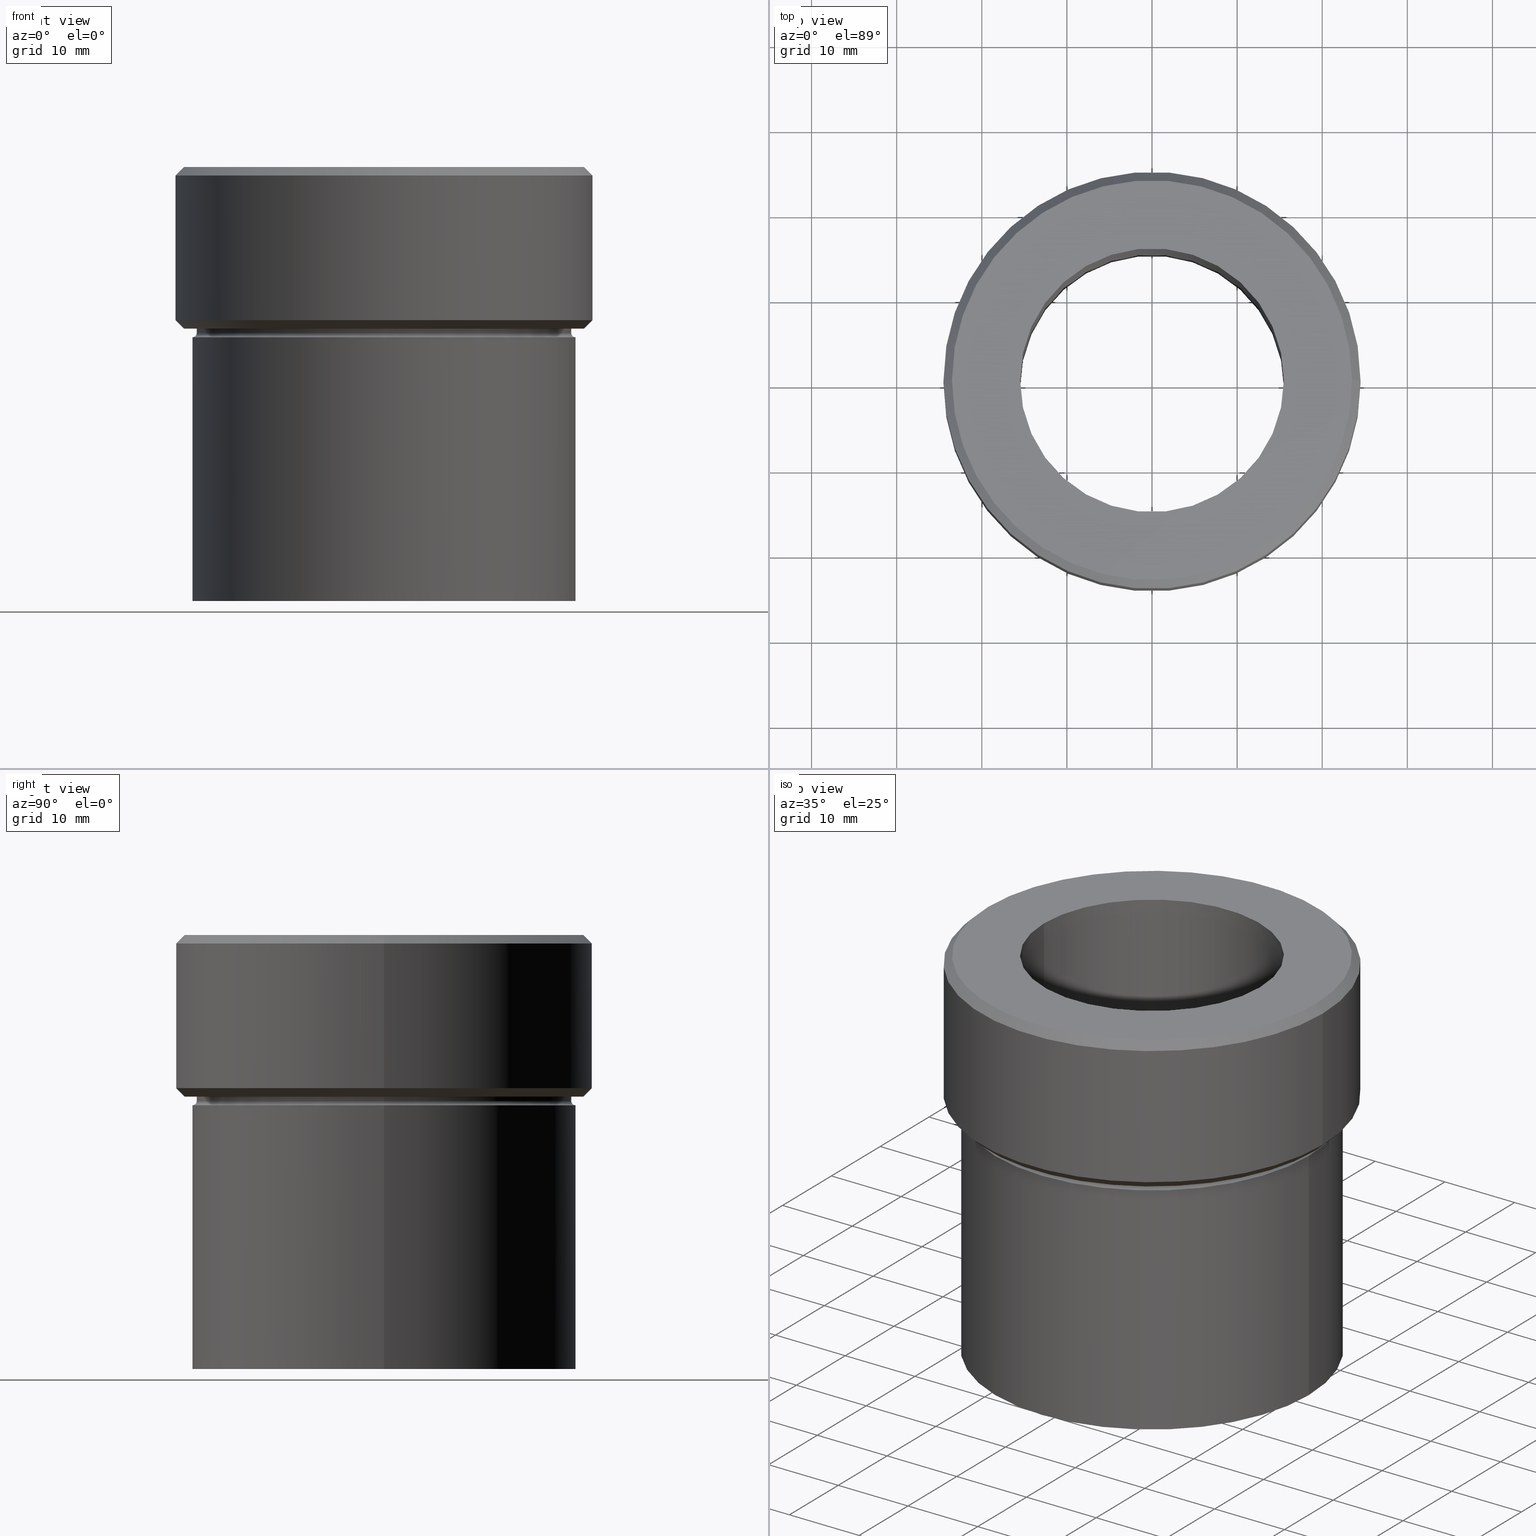
[diagram: canonical four-view strip — front | top / right | iso, engineering-drawing reading convention]
A machine part, canonical four-view strip (front | top / right | iso — engineering-drawing reading convention). The complete STEP part file that produces these views, byte-faithful:
ISO-10303-21;
HEADER;
FILE_DESCRIPTION (( 'STEP AP203' ),
    '1' );
FILE_NAME ('6616.STEP',
    '2024-01-08T12:24:46',
    ( '' ),
    ( '' ),
    'SwSTEP 2.0',
    'SolidWorks 2019',
    '' );
FILE_SCHEMA (( 'CONFIG_CONTROL_DESIGN' ));
ENDSEC;

DATA;
#1 = ORIENTED_EDGE ( 'NONE', *, *, #213, .T. ) ;
#2 = CC_DESIGN_PERSON_AND_ORGANIZATION_ASSIGNMENT ( #64, #234, ( #421 ) ) ;
#3 = DIRECTION ( 'NONE',  ( 1.000000000000000000, 0.000000000000000000, 0.000000000000000000 ) ) ;
#4 = DIRECTION ( 'NONE',  ( 0.000000000000000000, 0.000000000000000000, -1.000000000000000000 ) ) ;
#5 = CARTESIAN_POINT ( 'NONE',  ( 0.000000000000000000, 0.000000000000000000, 0.000000000000000000 ) ) ;
#6 = EDGE_CURVE ( 'NONE', #525, #436, #317, .T. ) ;
#7 = MANIFOLD_SOLID_BREP ( 'Odebrat vysunut�m1', #109 ) ;
#8 = ORIENTED_EDGE ( 'NONE', *, *, #213, .F. ) ;
#9 = AXIS2_PLACEMENT_3D ( 'NONE', #208, #228, #386 ) ;
#10 = PRODUCT_DEFINITION_SHAPE ( 'NONE', 'NONE',  #283 ) ;
#11 = DIRECTION ( 'NONE',  ( 1.000000000000000000, 0.000000000000000000, 0.000000000000000000 ) ) ;
#12 = PERSON_AND_ORGANIZATION_ROLE ( 'creator' ) ;
#13 = ORGANIZATION ( 'NEUR�EN�', 'NEUR�EN�', '' ) ;
#14 = LINE ( 'NONE', #469, #492 ) ;
#15 = DIRECTION ( 'NONE',  ( -0.000000000000000000, -0.000000000000000000, 1.000000000000000000 ) ) ;
#16 = PERSON_AND_ORGANIZATION ( #454, #13 ) ;
#17 = ADVANCED_FACE ( 'NONE', ( #281 ), #195, .T. ) ;
#18 = CIRCLE ( 'NONE', #161, 22.50000000000000355 ) ;
#19 = CARTESIAN_POINT ( 'NONE',  ( 0.000000000000000000, 0.000000000000000000, 0.000000000000000000 ) ) ;
#20 = VERTEX_POINT ( 'NONE', #243 ) ;
#21 = APPROVAL_PERSON_ORGANIZATION ( #511, #371, #60 ) ;
#22 = CARTESIAN_POINT ( 'NONE',  ( 0.000000000000000000, 0.000000000000000000, -19.99999999999999645 ) ) ;
#23 = ORIENTED_EDGE ( 'NONE', *, *, #66, .F. ) ;
#24 = CARTESIAN_POINT ( 'NONE',  ( 22.00000000000000000, 0.000000000000000000, -18.99999999999999645 ) ) ;
#25 = SECURITY_CLASSIFICATION_LEVEL ( 'unclassified' ) ;
#26 = ADVANCED_FACE ( 'NONE', ( #70 ), #259, .T. ) ;
#27 = VERTEX_POINT ( 'NONE', #438 ) ;
#28 = CARTESIAN_POINT ( 'NONE',  ( 0.000000000000000000, 0.000000000000000000, -19.49999999999999645 ) ) ;
#29 = VERTEX_POINT ( 'NONE', #361 ) ;
#30 = CC_DESIGN_PERSON_AND_ORGANIZATION_ASSIGNMENT ( #385, #184, ( #126 ) ) ;
#31 = AXIS2_PLACEMENT_3D ( 'NONE', #28, #358, #242 ) ;
#32 = CARTESIAN_POINT ( 'NONE',  ( 0.000000000000000000, 22.50000000000000355, -51.00000000000000000 ) ) ;
#33 = DIRECTION ( 'NONE',  ( -0.000000000000000000, -0.000000000000000000, 1.000000000000000000 ) ) ;
#34 = DIRECTION ( 'NONE',  ( 1.224646799147353207E-16, 1.000000000000000000, 0.000000000000000000 ) ) ;
#35 = EDGE_CURVE ( 'NONE', #287, #374, #364, .T. ) ;
#36 = APPLICATION_CONTEXT ( 'configuration controlled 3d designs of mechanical parts and assemblies' ) ;
#37 = EDGE_LOOP ( 'NONE', ( #284, #512, #84, #235 ) ) ;
#38 = CC_DESIGN_APPROVAL ( #82, ( #421 ) ) ;
#39 = DIRECTION ( 'NONE',  ( -1.000000000000000000, 0.000000000000000000, 0.000000000000000000 ) ) ;
#40 = CARTESIAN_POINT ( 'NONE',  ( 0.000000000000000000, 0.000000000000000000, -51.00000000000000000 ) ) ;
#41 = FACE_OUTER_BOUND ( 'NONE', #302, .T. ) ;
#42 = EDGE_CURVE ( 'NONE', #118, #193, #85, .T. ) ;
#43 = DIRECTION ( 'NONE',  ( -0.000000000000000000, -0.000000000000000000, 1.000000000000000000 ) ) ;
#44 = CARTESIAN_POINT ( 'NONE',  ( -22.00000000000000000, 2.694222958124176809E-15, -19.49999999999999645 ) ) ;
#45 = AXIS2_PLACEMENT_3D ( 'NONE', #346, #219, #224 ) ;
#46 = ORIENTED_EDGE ( 'NONE', *, *, #323, .T. ) ;
#47 = CARTESIAN_POINT ( 'NONE',  ( 0.000000000000000000, 0.000000000000000000, -19.49999999999999645 ) ) ;
#48 = ORIENTED_EDGE ( 'NONE', *, *, #313, .F. ) ;
#49 = CYLINDRICAL_SURFACE ( 'NONE', #429, 15.50000000000000000 ) ;
#50 = DIRECTION ( 'NONE',  ( 0.000000000000000000, 0.000000000000000000, -1.000000000000000000 ) ) ;
#51 = DIRECTION ( 'NONE',  ( 1.000000000000000000, 0.000000000000000000, 0.000000000000000000 ) ) ;
#52 = APPLICATION_PROTOCOL_DEFINITION ( 'international standard', 'config_control_design', 1994, #150 ) ;
#53 = AXIS2_PLACEMENT_3D ( 'NONE', #390, #306, #91 ) ;
#54 = DIRECTION ( 'NONE',  ( -0.000000000000000000, -0.000000000000000000, 1.000000000000000000 ) ) ;
#55 = CIRCLE ( 'NONE', #31, 22.00000000000000000 ) ;
#56 = CARTESIAN_POINT ( 'NONE',  ( 0.000000000000000000, 0.000000000000000000, -19.49999999999999645 ) ) ;
#57 = CALENDAR_DATE ( 2024, 8, 1 ) ;
#58 = EDGE_CURVE ( 'NONE', #158, #457, #246, .T. ) ;
#59 = FACE_OUTER_BOUND ( 'NONE', #263, .T. ) ;
#60 = APPROVAL_ROLE ( '' ) ;
#61 = ORIENTED_EDGE ( 'NONE', *, *, #345, .T. ) ;
#62 = AXIS2_PLACEMENT_3D ( 'NONE', #496, #87, #372 ) ;
#63 = DIRECTION ( 'NONE',  ( 1.000000000000000000, 0.000000000000000000, 0.000000000000000000 ) ) ;
#64 = PERSON_AND_ORGANIZATION ( #454, #13 ) ;
#65 = ORIENTED_EDGE ( 'NONE', *, *, #345, .F. ) ;
#66 = EDGE_CURVE ( 'NONE', #27, #441, #527, .T. ) ;
#67 = CARTESIAN_POINT ( 'NONE',  ( -23.50000000000000711, 0.000000000000000000, 0.000000000000000000 ) ) ;
#68 = EDGE_LOOP ( 'NONE', ( #310, #448, #8, #499 ) ) ;
#69 = CYLINDRICAL_SURFACE ( 'NONE', #86, 22.00000000000000000 ) ;
#70 = FACE_OUTER_BOUND ( 'NONE', #276, .T. ) ;
#71 = CARTESIAN_POINT ( 'NONE',  ( 0.000000000000000000, 0.000000000000000000, 0.000000000000000000 ) ) ;
#72 = DIRECTION ( 'NONE',  ( 0.000000000000000000, 0.000000000000000000, -1.000000000000000000 ) ) ;
#73 = ADVANCED_FACE ( 'NONE', ( #526 ), #488, .F. ) ;
#74 = ORIENTED_EDGE ( 'NONE', *, *, #220, .F. ) ;
#75 = CARTESIAN_POINT ( 'NONE',  ( -24.50000000000000000, 3.000384657911015469E-15, 0.000000000000000000 ) ) ;
#76 = CARTESIAN_POINT ( 'NONE',  ( 24.50000000000000000, 0.000000000000000000, -17.99999999999998224 ) ) ;
#77 = AXIS2_PLACEMENT_3D ( 'NONE', #227, #384, #141 ) ;
#78 = DIRECTION ( 'NONE',  ( -0.000000000000000000, -0.000000000000000000, 1.000000000000000000 ) ) ;
#79 = DIRECTION ( 'NONE',  ( 1.000000000000000000, 0.000000000000000000, 0.000000000000000000 ) ) ;
#80 = APPROVAL ( #112, 'NEUR�EN�' ) ;
#81 = DIRECTION ( 'NONE',  ( -1.000000000000000000, 0.000000000000000000, 0.000000000000000000 ) ) ;
#82 = APPROVAL ( #507, 'NEUR�EN�' ) ;
#83 = AXIS2_PLACEMENT_3D ( 'NONE', #167, #493, #377 ) ;
#84 = ORIENTED_EDGE ( 'NONE', *, *, #510, .F. ) ;
#85 = CIRCLE ( 'NONE', #293, 0.5000000000000004441 ) ;
#86 = AXIS2_PLACEMENT_3D ( 'NONE', #318, #315, #480 ) ;
#87 = DIRECTION ( 'NONE',  ( 0.000000000000000000, 0.000000000000000000, -1.000000000000000000 ) ) ;
#88 = CARTESIAN_POINT ( 'NONE',  ( 0.000000000000000000, 0.000000000000000000, -18.99999999999999645 ) ) ;
#89 = ORIENTED_EDGE ( 'NONE', *, *, #135, .F. ) ;
#90 = ADVANCED_FACE ( 'NONE', ( #254 ), #49, .F. ) ;
#91 = DIRECTION ( 'NONE',  ( 1.000000000000000000, 0.000000000000000000, 0.000000000000000000 ) ) ;
#92 = DATE_TIME_ROLE ( 'creation_date' ) ;
#93 = FACE_OUTER_BOUND ( 'NONE', #68, .T. ) ;
#94 = FACE_BOUND ( 'NONE', #520, .T. ) ;
#95 = EDGE_CURVE ( 'NONE', #523, #427, #330, .T. ) ;
#96 = DIRECTION ( 'NONE',  ( 0.000000000000000000, 0.000000000000000000, 1.000000000000000000 ) ) ;
#97 = APPROVAL_PERSON_ORGANIZATION ( #477, #80, #322 ) ;
#98 = DIRECTION ( 'NONE',  ( 0.000000000000000000, -0.000000000000000000, 1.000000000000000000 ) ) ;
#99 = COORDINATED_UNIVERSAL_TIME_OFFSET ( 1, 0, .AHEAD. ) ;
#100 = ORIENTED_EDGE ( 'NONE', *, *, #220, .T. ) ;
#101 = CC_DESIGN_PERSON_AND_ORGANIZATION_ASSIGNMENT ( #229, #12, ( #283 ) ) ;
#102 = CARTESIAN_POINT ( 'NONE',  ( 0.000000000000000000, 0.000000000000000000, -51.00000000000000000 ) ) ;
#103 = DATE_AND_TIME ( #387, #325 ) ;
#104 = ORIENTED_EDGE ( 'NONE', *, *, #197, .T. ) ;
#105 = EDGE_CURVE ( 'NONE', #427, #154, #485, .T. ) ;
#106 = CONICAL_SURFACE ( 'NONE', #62, 23.50000000000000711, 0.7853981633974482790 ) ;
#107 = COORDINATED_UNIVERSAL_TIME_OFFSET ( 1, 0, .AHEAD. ) ;
#108 = ORIENTED_EDGE ( 'NONE', *, *, #435, .F. ) ;
#109 = CLOSED_SHELL ( 'NONE', ( #73, #182, #174, #479, #239, #442, #418, #273, #362, #159, #501, #17, #461, #255, #26, #231, #90 ) ) ;
#110 = CC_DESIGN_SECURITY_CLASSIFICATION ( #445, ( #421 ) ) ;
#111 = CARTESIAN_POINT ( 'NONE',  ( -15.50000000000000000, 1.898202538678397557E-15, -51.00000000000000000 ) ) ;
#112 = APPROVAL_STATUS ( 'not_yet_approved' ) ;
#113 = DIRECTION ( 'NONE',  ( -0.000000000000000000, -0.000000000000000000, 1.000000000000000000 ) ) ;
#114 = DIRECTION ( 'NONE',  ( -0.000000000000000000, -0.000000000000000000, 1.000000000000000000 ) ) ;
#115 = EDGE_LOOP ( 'NONE', ( #339, #414 ) ) ;
#116 = AXIS2_PLACEMENT_3D ( 'NONE', #506, #54, #63 ) ;
#117 = EDGE_CURVE ( 'NONE', #525, #374, #206, .T. ) ;
#118 = VERTEX_POINT ( 'NONE', #44 ) ;
#119 = VECTOR ( 'NONE', #406, 1000.000000000000000 ) ;
#120 = ORIENTED_EDGE ( 'NONE', *, *, #117, .T. ) ;
#121 = PERSON_AND_ORGANIZATION_ROLE ( 'design_supplier' ) ;
#122 = EDGE_LOOP ( 'NONE', ( #179, #48, #407, #166 ) ) ;
#123 = DIRECTION ( 'NONE',  ( 0.000000000000000000, 0.000000000000000000, -1.000000000000000000 ) ) ;
#124 = EDGE_CURVE ( 'NONE', #158, #391, #258, .T. ) ;
#125 = DIRECTION ( 'NONE',  ( -0.000000000000000000, -0.000000000000000000, 1.000000000000000000 ) ) ;
#126 = PRODUCT ( '6616', '6616', '', ( #350 ) ) ;
#127 = AXIS2_PLACEMENT_3D ( 'NONE', #181, #98, #509 ) ;
#128 = CIRCLE ( 'NONE', #524, 22.00000000000000000 ) ;
#129 = CARTESIAN_POINT ( 'NONE',  ( 23.50000000000000711, 2.939152317953648289E-15, 0.000000000000000000 ) ) ;
#130 = CARTESIAN_POINT ( 'NONE',  ( 0.000000000000000000, 0.000000000000000000, -0.9999999999999940048 ) ) ;
#131 = ORIENTED_EDGE ( 'NONE', *, *, #376, .F. ) ;
#132 = DIRECTION ( 'NONE',  ( 1.000000000000000000, 0.000000000000000000, 0.000000000000000000 ) ) ;
#133 = CARTESIAN_POINT ( 'NONE',  ( 0.000000000000000000, 0.000000000000000000, -17.99999999999998224 ) ) ;
#134 = DIRECTION ( 'NONE',  ( -0.000000000000000000, -0.000000000000000000, 1.000000000000000000 ) ) ;
#135 = EDGE_CURVE ( 'NONE', #398, #27, #143, .T. ) ;
#136 = VECTOR ( 'NONE', #78, 1000.000000000000000 ) ;
#137 = ORIENTED_EDGE ( 'NONE', *, *, #519, .F. ) ;
#138 = LOCAL_TIME ( 13, 24, 46.00000000000000000, #288 ) ;
#139 = LINE ( 'NONE', #308, #314 ) ;
#140 = APPROVAL_STATUS ( 'not_yet_approved' ) ;
#141 = DIRECTION ( 'NONE',  ( 1.000000000000000000, 0.000000000000000000, 0.000000000000000000 ) ) ;
#142 = DIRECTION ( 'NONE',  ( 1.000000000000000000, 0.000000000000000000, 0.000000000000000000 ) ) ;
#143 = CIRCLE ( 'NONE', #380, 24.50000000000000000 ) ;
#144 = DESIGN_CONTEXT ( 'detailed design', #36, 'design' ) ;
#145 = PRODUCT_RELATED_PRODUCT_CATEGORY ( 'detail', '', ( #126 ) ) ;
#146 = DIRECTION ( 'NONE',  ( -0.000000000000000000, -0.000000000000000000, 1.000000000000000000 ) ) ;
#147 = APPROVAL_ROLE ( '' ) ;
#148 = DIRECTION ( 'NONE',  ( -0.7071067811865451302, 8.659560562354904508E-17, 0.7071067811865500152 ) ) ;
#149 = ORIENTED_EDGE ( 'NONE', *, *, #117, .F. ) ;
#150 = APPLICATION_CONTEXT ( 'configuration controlled 3d designs of mechanical parts and assemblies' ) ;
#151 = CARTESIAN_POINT ( 'NONE',  ( 24.50000000000000000, 0.000000000000000000, -0.9999999999999940048 ) ) ;
#152 = ORIENTED_EDGE ( 'NONE', *, *, #329, .T. ) ;
#153 = AXIS2_PLACEMENT_3D ( 'NONE', #497, #123, #412 ) ;
#154 = VERTEX_POINT ( 'NONE', #453 ) ;
#155 = VECTOR ( 'NONE', #245, 1000.000000000000000 ) ;
#156 = AXIS2_PLACEMENT_3D ( 'NONE', #40, #4, #209 ) ;
#157 = DIRECTION ( 'NONE',  ( -0.000000000000000000, -0.000000000000000000, 1.000000000000000000 ) ) ;
#158 = VERTEX_POINT ( 'NONE', #129 ) ;
#159 = ADVANCED_FACE ( 'NONE', ( #328, #449 ), #214, .T. ) ;
#160 = CARTESIAN_POINT ( 'NONE',  ( 22.50000000000000000, 0.000000000000000000, 0.000000000000000000 ) ) ;
#161 = AXIS2_PLACEMENT_3D ( 'NONE', #102, #307, #464 ) ;
#162 = EDGE_LOOP ( 'NONE', ( #356, #431, #393, #440 ) ) ;
#163 = VECTOR ( 'NONE', #296, 1000.000000000000114 ) ;
#164 = AXIS2_PLACEMENT_3D ( 'NONE', #515, #114, #396 ) ;
#165 = EDGE_LOOP ( 'NONE', ( #299, #452, #286, #131 ) ) ;
#166 = ORIENTED_EDGE ( 'NONE', *, *, #207, .F. ) ;
#167 = CARTESIAN_POINT ( 'NONE',  ( 22.50000000000000000, 0.000000000000000000, -19.49999999999999645 ) ) ;
#168 = LINE ( 'NONE', #76, #403 ) ;
#169 = DIRECTION ( 'NONE',  ( -0.000000000000000000, -0.000000000000000000, 1.000000000000000000 ) ) ;
#170 = AXIS2_PLACEMENT_3D ( 'NONE', #444, #402, #39 ) ;
#171 = CC_DESIGN_APPROVAL ( #80, ( #445 ) ) ;
#172 = DIRECTION ( 'NONE',  ( 1.000000000000000000, 0.000000000000000000, 0.000000000000000000 ) ) ;
#173 = EDGE_LOOP ( 'NONE', ( #46, #272 ) ) ;
#174 = ADVANCED_FACE ( 'NONE', ( #41 ), #106, .T. ) ;
#175 = DIRECTION ( 'NONE',  ( -0.000000000000000000, -0.000000000000000000, 1.000000000000000000 ) ) ;
#176 = ORIENTED_EDGE ( 'NONE', *, *, #495, .T. ) ;
#177 = DIRECTION ( 'NONE',  ( 0.000000000000000000, 0.000000000000000000, -1.000000000000000000 ) ) ;
#178 = VECTOR ( 'NONE', #125, 1000.000000000000000 ) ;
#179 = ORIENTED_EDGE ( 'NONE', *, *, #279, .F. ) ;
#180 = CIRCLE ( 'NONE', #456, 22.00000000000000000 ) ;
#181 = CARTESIAN_POINT ( 'NONE',  ( 0.000000000000000000, 0.000000000000000000, 0.000000000000000000 ) ) ;
#182 = ADVANCED_FACE ( 'NONE', ( #490 ), #401, .F. ) ;
#183 = DIRECTION ( 'NONE',  ( -1.000000000000000000, 0.000000000000000000, 0.000000000000000000 ) ) ;
#184 = PERSON_AND_ORGANIZATION_ROLE ( 'design_owner' ) ;
#185 = LINE ( 'NONE', #271, #194 ) ;
#186 = CIRCLE ( 'NONE', #483, 23.50000000000000711 ) ;
#187 = FACE_OUTER_BOUND ( 'NONE', #173, .T. ) ;
#188 = AXIS2_PLACEMENT_3D ( 'NONE', #455, #413, #370 ) ;
#189 = ORIENTED_EDGE ( 'NONE', *, *, #105, .T. ) ;
#190 = EDGE_CURVE ( 'NONE', #118, #29, #443, .T. ) ;
#191 = ORIENTED_EDGE ( 'NONE', *, *, #207, .T. ) ;
#192 = DIRECTION ( 'NONE',  ( -0.000000000000000000, -0.000000000000000000, 1.000000000000000000 ) ) ;
#193 = VERTEX_POINT ( 'NONE', #257 ) ;
#194 = VECTOR ( 'NONE', #148, 1000.000000000000114 ) ;
#195 = CYLINDRICAL_SURFACE ( 'NONE', #204, 22.50000000000000000 ) ;
#196 = AXIS2_PLACEMENT_3D ( 'NONE', #277, #157, #311 ) ;
#197 = EDGE_CURVE ( 'NONE', #295, #351, #437, .T. ) ;
#198 = DIRECTION ( 'NONE',  ( 0.000000000000000000, 0.000000000000000000, -1.000000000000000000 ) ) ;
#199 = DIRECTION ( 'NONE',  ( -1.000000000000000000, 0.000000000000000000, 0.000000000000000000 ) ) ;
#200 = EDGE_CURVE ( 'NONE', #400, #154, #217, .T. ) ;
#201 = PERSON_AND_ORGANIZATION_ROLE ( 'classification_officer' ) ;
#202 = ORIENTED_EDGE ( 'NONE', *, *, #279, .T. ) ;
#203 = EDGE_LOOP ( 'NONE', ( #108, #65 ) ) ;
#204 = AXIS2_PLACEMENT_3D ( 'NONE', #71, #33, #433 ) ;
#205 = CIRCLE ( 'NONE', #164, 22.50000000000000355 ) ;
#206 = CIRCLE ( 'NONE', #83, 0.5000000000000004441 ) ;
#207 = EDGE_CURVE ( 'NONE', #27, #398, #530, .T. ) ;
#208 = CARTESIAN_POINT ( 'NONE',  ( 0.000000000000000000, 0.000000000000000000, -19.99999999999999645 ) ) ;
#209 = DIRECTION ( 'NONE',  ( -1.000000000000000000, 0.000000000000000000, 0.000000000000000000 ) ) ;
#210 = DIRECTION ( 'NONE',  ( -1.000000000000000000, 0.000000000000000000, -0.000000000000000000 ) ) ;
#211 = TOROIDAL_SURFACE ( 'NONE', #116, 22.50000000000000000, 0.5000000000000000000 ) ;
#212 = ORIENTED_EDGE ( 'NONE', *, *, #510, .T. ) ;
#213 = EDGE_CURVE ( 'NONE', #374, #193, #474, .T. ) ;
#214 = PLANE ( 'NONE',  #301 ) ;
#215 = DIRECTION ( 'NONE',  ( 0.7071067811865451302, 0.000000000000000000, 0.7071067811865500152 ) ) ;
#216 = EDGE_LOOP ( 'NONE', ( #278, #337, #120, #1 ) ) ;
#217 = LINE ( 'NONE', #248, #178 ) ;
#218 = ORIENTED_EDGE ( 'NONE', *, *, #200, .F. ) ;
#219 = DIRECTION ( 'NONE',  ( 0.000000000000000000, 0.000000000000000000, -1.000000000000000000 ) ) ;
#220 = EDGE_CURVE ( 'NONE', #391, #441, #139, .T. ) ;
#221 =( LENGTH_UNIT ( ) NAMED_UNIT ( * ) SI_UNIT ( .MILLI., .METRE. ) );
#222 = AXIS2_PLACEMENT_3D ( 'NONE', #19, #146, #232 ) ;
#223 =( GEOMETRIC_REPRESENTATION_CONTEXT ( 3 ) GLOBAL_UNCERTAINTY_ASSIGNED_CONTEXT ( ( #508 ) ) GLOBAL_UNIT_ASSIGNED_CONTEXT ( ( #221, #305, #468 ) ) REPRESENTATION_CONTEXT ( 'NONE', 'WORKASPACE' ) );
#224 = DIRECTION ( 'NONE',  ( -1.000000000000000000, 0.000000000000000000, 0.000000000000000000 ) ) ;
#225 = APPROVAL_DATE_TIME ( #423, #371 ) ;
#226 = EDGE_CURVE ( 'NONE', #193, #374, #419, .T. ) ;
#227 = CARTESIAN_POINT ( 'NONE',  ( 0.000000000000000000, 0.000000000000000000, -18.99999999999999645 ) ) ;
#228 = DIRECTION ( 'NONE',  ( -0.000000000000000000, -0.000000000000000000, 1.000000000000000000 ) ) ;
#229 = PERSON_AND_ORGANIZATION ( #454, #13 ) ;
#230 = ORIENTED_EDGE ( 'NONE', *, *, #197, .F. ) ;
#231 = ADVANCED_FACE ( 'NONE', ( #349 ), #211, .F. ) ;
#232 = DIRECTION ( 'NONE',  ( 1.000000000000000000, 0.000000000000000000, 0.000000000000000000 ) ) ;
#233 = VECTOR ( 'NONE', #291, 1000.000000000000000 ) ;
#234 = PERSON_AND_ORGANIZATION_ROLE ( 'creator' ) ;
#235 = ORIENTED_EDGE ( 'NONE', *, *, #6, .F. ) ;
#236 = ORIENTED_EDGE ( 'NONE', *, *, #58, .T. ) ;
#237 = CYLINDRICAL_SURFACE ( 'NONE', #196, 24.50000000000000000 ) ;
#238 = SHAPE_DEFINITION_REPRESENTATION ( #10, #297 ) ;
#239 = ADVANCED_FACE ( 'NONE', ( #93 ), #267, .T. ) ;
#240 = EDGE_LOOP ( 'NONE', ( #481, #528, #353, #149 ) ) ;
#241 = AXIS2_PLACEMENT_3D ( 'NONE', #424, #458, #183 ) ;
#242 = DIRECTION ( 'NONE',  ( 1.000000000000000000, 0.000000000000000000, 0.000000000000000000 ) ) ;
#243 = CARTESIAN_POINT ( 'NONE',  ( -22.50000000000000355, 2.755455298081545567E-15, -51.00000000000000000 ) ) ;
#244 = CONICAL_SURFACE ( 'NONE', #250, 24.50000000000000000, 0.7853981633974447263 ) ;
#245 = DIRECTION ( 'NONE',  ( -0.000000000000000000, -0.000000000000000000, 1.000000000000000000 ) ) ;
#246 = LINE ( 'NONE', #300, #163 ) ;
#247 = AXIS2_PLACEMENT_3D ( 'NONE', #47, #175, #132 ) ;
#248 = CARTESIAN_POINT ( 'NONE',  ( -15.50000000000000000, 1.898202538678397557E-15, -65.00000000000000000 ) ) ;
#249 = DIRECTION ( 'NONE',  ( -0.000000000000000000, -0.000000000000000000, 1.000000000000000000 ) ) ;
#250 = AXIS2_PLACEMENT_3D ( 'NONE', #133, #249, #331 ) ;
#251 = EDGE_LOOP ( 'NONE', ( #517, #104 ) ) ;
#252 = DIRECTION ( 'NONE',  ( -0.000000000000000000, -0.000000000000000000, 1.000000000000000000 ) ) ;
#253 = LINE ( 'NONE', #405, #484 ) ;
#254 = FACE_OUTER_BOUND ( 'NONE', #522, .T. ) ;
#255 = ADVANCED_FACE ( 'NONE', ( #383 ), #518, .T. ) ;
#256 = ORIENTED_EDGE ( 'NONE', *, *, #323, .F. ) ;
#257 = CARTESIAN_POINT ( 'NONE',  ( -22.50000000000000000, 2.755455298081544778E-15, -19.99999999999999645 ) ) ;
#258 = CIRCLE ( 'NONE', #389, 23.50000000000000711 ) ;
#259 = CONICAL_SURFACE ( 'NONE', #321, 23.50000000000000711, 0.7853981633974482790 ) ;
#260 = ORIENTED_EDGE ( 'NONE', *, *, #226, .F. ) ;
#261 = LOCAL_TIME ( 13, 24, 46.00000000000000000, #459 ) ;
#262 = CARTESIAN_POINT ( 'NONE',  ( 0.000000000000000000, 0.000000000000000000, -65.00000000000000000 ) ) ;
#263 = EDGE_LOOP ( 'NONE', ( #23, #191, #482, #319 ) ) ;
#264 = EDGE_CURVE ( 'NONE', #457, #441, #357, .T. ) ;
#265 = CYLINDRICAL_SURFACE ( 'NONE', #466, 24.50000000000000000 ) ;
#266 = PERSON_AND_ORGANIZATION ( #454, #13 ) ;
#267 = CYLINDRICAL_SURFACE ( 'NONE', #222, 22.50000000000000000 ) ;
#268 = CIRCLE ( 'NONE', #45, 23.49999999999999289 ) ;
#269 = DIRECTION ( 'NONE',  ( -0.000000000000000000, -0.000000000000000000, 1.000000000000000000 ) ) ;
#270 = DIRECTION ( 'NONE',  ( 1.000000000000000000, 0.000000000000000000, 0.000000000000000000 ) ) ;
#271 = CARTESIAN_POINT ( 'NONE',  ( -24.50000000000000000, 3.000384657911015469E-15, -17.99999999999998224 ) ) ;
#272 = ORIENTED_EDGE ( 'NONE', *, *, #124, .T. ) ;
#273 = ADVANCED_FACE ( 'NONE', ( #94, #187 ), #304, .T. ) ;
#274 = CARTESIAN_POINT ( 'NONE',  ( 23.49999999999999289, 0.000000000000000000, -18.99999999999999645 ) ) ;
#275 = APPROVAL_DATE_TIME ( #103, #82 ) ;
#276 = EDGE_LOOP ( 'NONE', ( #388, #256, #100, #327 ) ) ;
#277 = CARTESIAN_POINT ( 'NONE',  ( 0.000000000000000000, 0.000000000000000000, 0.000000000000000000 ) ) ;
#278 = ORIENTED_EDGE ( 'NONE', *, *, #42, .F. ) ;
#279 = EDGE_CURVE ( 'NONE', #295, #27, #185, .T. ) ;
#280 = APPROVAL_DATE_TIME ( #430, #80 ) ;
#281 = FACE_OUTER_BOUND ( 'NONE', #473, .T. ) ;
#282 = PLANE ( 'NONE',  #500 ) ;
#283 = PRODUCT_DEFINITION ( 'NEZN�M�', '', #421, #144 ) ;
#284 = ORIENTED_EDGE ( 'NONE', *, *, #367, .T. ) ;
#285 = CALENDAR_DATE ( 2024, 8, 1 ) ;
#286 = ORIENTED_EDGE ( 'NONE', *, *, #6, .T. ) ;
#287 = VERTEX_POINT ( 'NONE', #462 ) ;
#288 = COORDINATED_UNIVERSAL_TIME_OFFSET ( 1, 0, .AHEAD. ) ;
#289 = DIRECTION ( 'NONE',  ( -1.000000000000000000, 1.224646799147349509E-16, 0.000000000000000000 ) ) ;
#290 = EDGE_CURVE ( 'NONE', #398, #457, #14, .T. ) ;
#291 = DIRECTION ( 'NONE',  ( -0.000000000000000000, -0.000000000000000000, 1.000000000000000000 ) ) ;
#292 = CARTESIAN_POINT ( 'NONE',  ( 0.000000000000000000, 0.000000000000000000, 0.000000000000000000 ) ) ;
#293 = AXIS2_PLACEMENT_3D ( 'NONE', #399, #34, #289 ) ;
#294 = DIRECTION ( 'NONE',  ( -0.000000000000000000, -0.000000000000000000, 1.000000000000000000 ) ) ;
#295 = VERTEX_POINT ( 'NONE', #343 ) ;
#296 = DIRECTION ( 'NONE',  ( 0.7071067811865474617, 8.659560562354932858E-17, -0.7071067811865474617 ) ) ;
#297 = ADVANCED_BREP_SHAPE_REPRESENTATION ( '6616', ( #7, #494 ), #223 ) ;
#298 = DIRECTION ( 'NONE',  ( -0.000000000000000000, -0.000000000000000000, 1.000000000000000000 ) ) ;
#299 = ORIENTED_EDGE ( 'NONE', *, *, #190, .F. ) ;
#300 = CARTESIAN_POINT ( 'NONE',  ( 23.50000000000000711, 2.877919977996281109E-15, 0.000000000000000000 ) ) ;
#301 = AXIS2_PLACEMENT_3D ( 'NONE', #336, #177, #210 ) ;
#302 = EDGE_LOOP ( 'NONE', ( #514, #236, #137, #74 ) ) ;
#303 = CIRCLE ( 'NONE', #365, 24.50000000000000000 ) ;
#304 = PLANE ( 'NONE',  #127 ) ;
#305 =( NAMED_UNIT ( * ) PLANE_ANGLE_UNIT ( ) SI_UNIT ( $, .RADIAN. ) );
#306 = DIRECTION ( 'NONE',  ( -0.000000000000000000, -0.000000000000000000, 1.000000000000000000 ) ) ;
#307 = DIRECTION ( 'NONE',  ( -0.000000000000000000, -0.000000000000000000, 1.000000000000000000 ) ) ;
#308 = CARTESIAN_POINT ( 'NONE',  ( -23.50000000000000711, 0.000000000000000000, 0.000000000000000000 ) ) ;
#309 = DIRECTION ( 'NONE',  ( 1.000000000000000000, 0.000000000000000000, 0.000000000000000000 ) ) ;
#310 = ORIENTED_EDGE ( 'NONE', *, *, #435, .T. ) ;
#311 = DIRECTION ( 'NONE',  ( 1.000000000000000000, 0.000000000000000000, 0.000000000000000000 ) ) ;
#312 = ORIENTED_EDGE ( 'NONE', *, *, #95, .T. ) ;
#313 = EDGE_CURVE ( 'NONE', #351, #295, #268, .T. ) ;
#314 = VECTOR ( 'NONE', #426, 1000.000000000000114 ) ;
#315 = DIRECTION ( 'NONE',  ( -0.000000000000000000, -0.000000000000000000, 1.000000000000000000 ) ) ;
#316 = LOCAL_TIME ( 13, 24, 46.00000000000000000, #344 ) ;
#317 = LINE ( 'NONE', #324, #420 ) ;
#318 = CARTESIAN_POINT ( 'NONE',  ( 0.000000000000000000, 0.000000000000000000, 0.000000000000000000 ) ) ;
#319 = ORIENTED_EDGE ( 'NONE', *, *, #264, .T. ) ;
#320 = ORIENTED_EDGE ( 'NONE', *, *, #105, .F. ) ;
#321 = AXIS2_PLACEMENT_3D ( 'NONE', #395, #72, #199 ) ;
#322 = APPROVAL_ROLE ( '' ) ;
#323 = EDGE_CURVE ( 'NONE', #391, #158, #186, .T. ) ;
#324 = CARTESIAN_POINT ( 'NONE',  ( 22.00000000000000000, 0.000000000000000000, 0.000000000000000000 ) ) ;
#325 = LOCAL_TIME ( 13, 24, 46.00000000000000000, #99 ) ;
#326 = AXIS2_PLACEMENT_3D ( 'NONE', #5, #294, #172 ) ;
#327 = ORIENTED_EDGE ( 'NONE', *, *, #264, .F. ) ;
#328 = FACE_OUTER_BOUND ( 'NONE', #251, .T. ) ;
#329 = EDGE_CURVE ( 'NONE', #523, #400, #465, .T. ) ;
#330 = LINE ( 'NONE', #375, #119 ) ;
#331 = DIRECTION ( 'NONE',  ( 1.000000000000000000, 0.000000000000000000, 0.000000000000000000 ) ) ;
#332 = APPROVAL_PERSON_ORGANIZATION ( #16, #82, #147 ) ;
#333 = ORIENTED_EDGE ( 'NONE', *, *, #529, .F. ) ;
#334 = CC_DESIGN_DATE_AND_TIME_ASSIGNMENT ( #486, #521, ( #445 ) ) ;
#335 = CC_DESIGN_PERSON_AND_ORGANIZATION_ASSIGNMENT ( #355, #201, ( #445 ) ) ;
#336 = CARTESIAN_POINT ( 'NONE',  ( 0.000000000000000000, 24.50000000000000000, -18.99999999999999645 ) ) ;
#337 = ORIENTED_EDGE ( 'NONE', *, *, #367, .F. ) ;
#338 = DIRECTION ( 'NONE',  ( 0.000000000000000000, 0.000000000000000000, -1.000000000000000000 ) ) ;
#339 = ORIENTED_EDGE ( 'NONE', *, *, #329, .F. ) ;
#340 = LOCAL_TIME ( 13, 24, 46.00000000000000000, #107 ) ;
#341 = DIRECTION ( 'NONE',  ( -0.000000000000000000, -0.000000000000000000, 1.000000000000000000 ) ) ;
#342 = APPLICATION_PROTOCOL_DEFINITION ( 'international standard', 'config_control_design', 1994, #36 ) ;
#343 = CARTESIAN_POINT ( 'NONE',  ( -23.49999999999999289, 2.939152317953647500E-15, -18.99999999999999645 ) ) ;
#344 = COORDINATED_UNIVERSAL_TIME_OFFSET ( 1, 0, .AHEAD. ) ;
#345 = EDGE_CURVE ( 'NONE', #20, #287, #18, .T. ) ;
#346 = CARTESIAN_POINT ( 'NONE',  ( 0.000000000000000000, 0.000000000000000000, -18.99999999999999645 ) ) ;
#347 = AXIS2_PLACEMENT_3D ( 'NONE', #22, #15, #309 ) ;
#348 = AXIS2_PLACEMENT_3D ( 'NONE', #369, #169, #3 ) ;
#349 = FACE_OUTER_BOUND ( 'NONE', #216, .T. ) ;
#350 = MECHANICAL_CONTEXT ( 'NONE', #150, 'mechanical' ) ;
#351 = VERTEX_POINT ( 'NONE', #274 ) ;
#352 = FACE_BOUND ( 'NONE', #115, .T. ) ;
#353 = ORIENTED_EDGE ( 'NONE', *, *, #226, .T. ) ;
#354 = CARTESIAN_POINT ( 'NONE',  ( 0.000000000000000000, 0.000000000000000000, 0.000000000000000000 ) ) ;
#355 = PERSON_AND_ORGANIZATION ( #454, #13 ) ;
#356 = ORIENTED_EDGE ( 'NONE', *, *, #135, .T. ) ;
#357 = CIRCLE ( 'NONE', #505, 24.50000000000000000 ) ;
#358 = DIRECTION ( 'NONE',  ( -0.000000000000000000, -0.000000000000000000, 1.000000000000000000 ) ) ;
#359 = ORIENTED_EDGE ( 'NONE', *, *, #472, .F. ) ;
#360 = CARTESIAN_POINT ( 'NONE',  ( -24.50000000000000000, 3.000384657911015469E-15, -0.9999999999999940048 ) ) ;
#361 = CARTESIAN_POINT ( 'NONE',  ( -22.00000000000000000, 2.694222958124176809E-15, -18.99999999999999645 ) ) ;
#362 = ADVANCED_FACE ( 'NONE', ( #59 ), #265, .T. ) ;
#363 = EDGE_LOOP ( 'NONE', ( #212, #502 ) ) ;
#364 = LINE ( 'NONE', #160, #155 ) ;
#365 = AXIS2_PLACEMENT_3D ( 'NONE', #130, #50, #79 ) ;
#366 = DIRECTION ( 'NONE',  ( -0.000000000000000000, -0.000000000000000000, 1.000000000000000000 ) ) ;
#367 = EDGE_CURVE ( 'NONE', #525, #118, #180, .T. ) ;
#368 = CARTESIAN_POINT ( 'NONE',  ( 15.50000000000000000, 0.000000000000000000, -51.00000000000000000 ) ) ;
#369 = CARTESIAN_POINT ( 'NONE',  ( 0.000000000000000000, 0.000000000000000000, -65.00000000000000000 ) ) ;
#370 = DIRECTION ( 'NONE',  ( 1.000000000000000000, 0.000000000000000000, 0.000000000000000000 ) ) ;
#371 = APPROVAL ( #140, 'NEUR�EN�' ) ;
#372 = DIRECTION ( 'NONE',  ( -1.000000000000000000, 0.000000000000000000, 0.000000000000000000 ) ) ;
#373 = FACE_OUTER_BOUND ( 'NONE', #478, .T. ) ;
#374 = VERTEX_POINT ( 'NONE', #503 ) ;
#375 = CARTESIAN_POINT ( 'NONE',  ( 15.50000000000000000, 0.000000000000000000, -65.00000000000000000 ) ) ;
#376 = EDGE_CURVE ( 'NONE', #29, #436, #409, .T. ) ;
#377 = DIRECTION ( 'NONE',  ( 0.000000000000000000, 0.000000000000000000, -1.000000000000000000 ) ) ;
#378 = ORIENTED_EDGE ( 'NONE', *, *, #450, .T. ) ;
#379 = DIRECTION ( 'NONE',  ( -0.000000000000000000, -0.000000000000000000, 1.000000000000000000 ) ) ;
#380 = AXIS2_PLACEMENT_3D ( 'NONE', #447, #366, #81 ) ;
#381 = CALENDAR_DATE ( 2024, 8, 1 ) ;
#382 = CIRCLE ( 'NONE', #156, 15.50000000000000000 ) ;
#383 = FACE_OUTER_BOUND ( 'NONE', #122, .T. ) ;
#384 = DIRECTION ( 'NONE',  ( -0.000000000000000000, -0.000000000000000000, 1.000000000000000000 ) ) ;
#385 = PERSON_AND_ORGANIZATION ( #454, #13 ) ;
#386 = DIRECTION ( 'NONE',  ( 1.000000000000000000, 0.000000000000000000, 0.000000000000000000 ) ) ;
#387 = CALENDAR_DATE ( 2024, 8, 1 ) ;
#388 = ORIENTED_EDGE ( 'NONE', *, *, #58, .F. ) ;
#389 = AXIS2_PLACEMENT_3D ( 'NONE', #292, #134, #404 ) ;
#390 = CARTESIAN_POINT ( 'NONE',  ( 0.000000000000000000, 0.000000000000000000, -17.99999999999998224 ) ) ;
#391 = VERTEX_POINT ( 'NONE', #67 ) ;
#392 = FACE_OUTER_BOUND ( 'NONE', #37, .T. ) ;
#393 = ORIENTED_EDGE ( 'NONE', *, *, #519, .T. ) ;
#394 = FACE_OUTER_BOUND ( 'NONE', #162, .T. ) ;
#395 = CARTESIAN_POINT ( 'NONE',  ( 0.000000000000000000, 0.000000000000000000, 0.000000000000000000 ) ) ;
#396 = DIRECTION ( 'NONE',  ( 1.000000000000000000, 0.000000000000000000, 0.000000000000000000 ) ) ;
#397 = CC_DESIGN_APPROVAL ( #371, ( #283 ) ) ;
#398 = VERTEX_POINT ( 'NONE', #432 ) ;
#399 = CARTESIAN_POINT ( 'NONE',  ( -22.50000000000000000, 2.755455298081544778E-15, -19.49999999999999645 ) ) ;
#400 = VERTEX_POINT ( 'NONE', #111 ) ;
#401 = TOROIDAL_SURFACE ( 'NONE', #247, 22.50000000000000000, 0.5000000000000000000 ) ;
#402 = DIRECTION ( 'NONE',  ( -0.000000000000000000, -0.000000000000000000, 1.000000000000000000 ) ) ;
#403 = VECTOR ( 'NONE', #215, 1000.000000000000114 ) ;
#404 = DIRECTION ( 'NONE',  ( 1.000000000000000000, 0.000000000000000000, 0.000000000000000000 ) ) ;
#405 = CARTESIAN_POINT ( 'NONE',  ( -22.50000000000000000, 2.755455298081544778E-15, 0.000000000000000000 ) ) ;
#406 = DIRECTION ( 'NONE',  ( -0.000000000000000000, -0.000000000000000000, 1.000000000000000000 ) ) ;
#407 = ORIENTED_EDGE ( 'NONE', *, *, #472, .T. ) ;
#408 = DIRECTION ( 'NONE',  ( 1.000000000000000000, 0.000000000000000000, 0.000000000000000000 ) ) ;
#409 = CIRCLE ( 'NONE', #77, 22.00000000000000000 ) ;
#410 = ORIENTED_EDGE ( 'NONE', *, *, #35, .T. ) ;
#411 = EDGE_CURVE ( 'NONE', #118, #525, #55, .T. ) ;
#412 = DIRECTION ( 'NONE',  ( -1.000000000000000000, 0.000000000000000000, 0.000000000000000000 ) ) ;
#413 = DIRECTION ( 'NONE',  ( -0.000000000000000000, -0.000000000000000000, 1.000000000000000000 ) ) ;
#414 = ORIENTED_EDGE ( 'NONE', *, *, #495, .F. ) ;
#415 = DIRECTION ( 'NONE',  ( -0.000000000000000000, -0.000000000000000000, 1.000000000000000000 ) ) ;
#416 = CARTESIAN_POINT ( 'NONE',  ( 0.000000000000000000, 0.000000000000000000, 0.000000000000000000 ) ) ;
#417 = DIRECTION ( 'NONE',  ( 1.000000000000000000, 0.000000000000000000, 0.000000000000000000 ) ) ;
#418 = ADVANCED_FACE ( 'NONE', ( #394 ), #237, .T. ) ;
#419 = CIRCLE ( 'NONE', #347, 22.50000000000000000 ) ;
#420 = VECTOR ( 'NONE', #113, 1000.000000000000000 ) ;
#421 = PRODUCT_DEFINITION_FORMATION_WITH_SPECIFIED_SOURCE ( 'LIBOVOLN�', '', #126, .NOT_KNOWN. ) ;
#422 = CARTESIAN_POINT ( 'NONE',  ( 0.000000000000000000, 0.000000000000000000, 0.000000000000000000 ) ) ;
#423 = DATE_AND_TIME ( #381, #316 ) ;
#424 = CARTESIAN_POINT ( 'NONE',  ( 0.000000000000000000, 0.000000000000000000, -51.00000000000000000 ) ) ;
#425 = ORIENTED_EDGE ( 'NONE', *, *, #200, .T. ) ;
#426 = DIRECTION ( 'NONE',  ( -0.7071067811865474617, 0.000000000000000000, -0.7071067811865474617 ) ) ;
#427 = VERTEX_POINT ( 'NONE', #434 ) ;
#428 = AXIS2_PLACEMENT_3D ( 'NONE', #354, #192, #476 ) ;
#429 = AXIS2_PLACEMENT_3D ( 'NONE', #262, #252, #408 ) ;
#430 = DATE_AND_TIME ( #285, #340 ) ;
#431 = ORIENTED_EDGE ( 'NONE', *, *, #66, .T. ) ;
#432 = CARTESIAN_POINT ( 'NONE',  ( 24.50000000000000000, 0.000000000000000000, -17.99999999999998224 ) ) ;
#433 = DIRECTION ( 'NONE',  ( 1.000000000000000000, 0.000000000000000000, 0.000000000000000000 ) ) ;
#434 = CARTESIAN_POINT ( 'NONE',  ( 15.50000000000000000, 0.000000000000000000, 0.000000000000000000 ) ) ;
#435 = EDGE_CURVE ( 'NONE', #287, #20, #205, .T. ) ;
#436 = VERTEX_POINT ( 'NONE', #24 ) ;
#437 = CIRCLE ( 'NONE', #153, 23.49999999999999289 ) ;
#438 = CARTESIAN_POINT ( 'NONE',  ( -24.50000000000000000, 3.000384657911015469E-15, -17.99999999999998224 ) ) ;
#439 = CC_DESIGN_PERSON_AND_ORGANIZATION_ASSIGNMENT ( #266, #121, ( #421 ) ) ;
#440 = ORIENTED_EDGE ( 'NONE', *, *, #290, .F. ) ;
#441 = VERTEX_POINT ( 'NONE', #360 ) ;
#442 = ADVANCED_FACE ( 'NONE', ( #392 ), #69, .T. ) ;
#443 = LINE ( 'NONE', #531, #136 ) ;
#444 = CARTESIAN_POINT ( 'NONE',  ( 0.000000000000000000, 0.000000000000000000, -17.99999999999998224 ) ) ;
#445 = SECURITY_CLASSIFICATION ( '', '', #25 ) ;
#446 = CYLINDRICAL_SURFACE ( 'NONE', #188, 22.00000000000000000 ) ;
#447 = CARTESIAN_POINT ( 'NONE',  ( 0.000000000000000000, 0.000000000000000000, -17.99999999999998224 ) ) ;
#448 = ORIENTED_EDGE ( 'NONE', *, *, #529, .T. ) ;
#449 = FACE_BOUND ( 'NONE', #363, .T. ) ;
#450 = EDGE_CURVE ( 'NONE', #154, #427, #475, .T. ) ;
#451 = DIRECTION ( 'NONE',  ( 1.000000000000000000, 0.000000000000000000, 0.000000000000000000 ) ) ;
#452 = ORIENTED_EDGE ( 'NONE', *, *, #411, .T. ) ;
#453 = CARTESIAN_POINT ( 'NONE',  ( -15.50000000000000000, 1.898202538678397557E-15, 0.000000000000000000 ) ) ;
#454 = PERSON ( 'NEUR�EN�', 'NEUR�EN�', 'NEUR�EN�', ('NEUR�EN�'), ('NEUR�EN�'), ('NEUR�EN�') ) ;
#455 = CARTESIAN_POINT ( 'NONE',  ( 0.000000000000000000, 0.000000000000000000, 0.000000000000000000 ) ) ;
#456 = AXIS2_PLACEMENT_3D ( 'NONE', #56, #379, #11 ) ;
#457 = VERTEX_POINT ( 'NONE', #151 ) ;
#458 = DIRECTION ( 'NONE',  ( 0.000000000000000000, 0.000000000000000000, -1.000000000000000000 ) ) ;
#459 = COORDINATED_UNIVERSAL_TIME_OFFSET ( 1, 0, .AHEAD. ) ;
#460 = EDGE_LOOP ( 'NONE', ( #152, #425, #378, #487 ) ) ;
#461 = ADVANCED_FACE ( 'NONE', ( #352, #513 ), #282, .T. ) ;
#462 = CARTESIAN_POINT ( 'NONE',  ( 22.50000000000000355, 0.000000000000000000, -51.00000000000000000 ) ) ;
#463 = CC_DESIGN_DATE_AND_TIME_ASSIGNMENT ( #470, #92, ( #283 ) ) ;
#464 = DIRECTION ( 'NONE',  ( 1.000000000000000000, 0.000000000000000000, 0.000000000000000000 ) ) ;
#465 = CIRCLE ( 'NONE', #241, 15.50000000000000000 ) ;
#466 = AXIS2_PLACEMENT_3D ( 'NONE', #422, #415, #51 ) ;
#467 = CARTESIAN_POINT ( 'NONE',  ( 0.000000000000000000, 0.000000000000000000, -0.9999999999999940048 ) ) ;
#468 =( NAMED_UNIT ( * ) SI_UNIT ( $, .STERADIAN. ) SOLID_ANGLE_UNIT ( ) );
#469 = CARTESIAN_POINT ( 'NONE',  ( 24.50000000000000000, 0.000000000000000000, 0.000000000000000000 ) ) ;
#470 = DATE_AND_TIME ( #57, #261 ) ;
#471 = ORIENTED_EDGE ( 'NONE', *, *, #450, .F. ) ;
#472 = EDGE_CURVE ( 'NONE', #351, #398, #168, .T. ) ;
#473 = EDGE_LOOP ( 'NONE', ( #333, #61, #410, #260 ) ) ;
#474 = CIRCLE ( 'NONE', #9, 22.50000000000000000 ) ;
#475 = CIRCLE ( 'NONE', #428, 15.50000000000000000 ) ;
#476 = DIRECTION ( 'NONE',  ( 1.000000000000000000, 0.000000000000000000, 0.000000000000000000 ) ) ;
#477 = PERSON_AND_ORGANIZATION ( #454, #13 ) ;
#478 = EDGE_LOOP ( 'NONE', ( #230, #202, #89, #359 ) ) ;
#479 = ADVANCED_FACE ( 'NONE', ( #373 ), #244, .T. ) ;
#480 = DIRECTION ( 'NONE',  ( 1.000000000000000000, 0.000000000000000000, 0.000000000000000000 ) ) ;
#481 = ORIENTED_EDGE ( 'NONE', *, *, #411, .F. ) ;
#482 = ORIENTED_EDGE ( 'NONE', *, *, #290, .T. ) ;
#483 = AXIS2_PLACEMENT_3D ( 'NONE', #504, #341, #417 ) ;
#484 = VECTOR ( 'NONE', #43, 1000.000000000000000 ) ;
#485 = CIRCLE ( 'NONE', #326, 15.50000000000000000 ) ;
#486 = DATE_AND_TIME ( #516, #138 ) ;
#487 = ORIENTED_EDGE ( 'NONE', *, *, #95, .F. ) ;
#488 = CYLINDRICAL_SURFACE ( 'NONE', #348, 15.50000000000000000 ) ;
#489 = DIRECTION ( 'NONE',  ( -1.000000000000000000, 0.000000000000000000, -0.000000000000000000 ) ) ;
#490 = FACE_OUTER_BOUND ( 'NONE', #240, .T. ) ;
#491 = CARTESIAN_POINT ( 'NONE',  ( 22.00000000000000000, 0.000000000000000000, -19.49999999999999645 ) ) ;
#492 = VECTOR ( 'NONE', #269, 1000.000000000000000 ) ;
#493 = DIRECTION ( 'NONE',  ( 0.000000000000000000, -1.000000000000000000, 0.000000000000000000 ) ) ;
#494 = AXIS2_PLACEMENT_3D ( 'NONE', #416, #96, #270 ) ;
#495 = EDGE_CURVE ( 'NONE', #400, #523, #382, .T. ) ;
#496 = CARTESIAN_POINT ( 'NONE',  ( 0.000000000000000000, 0.000000000000000000, 0.000000000000000000 ) ) ;
#497 = CARTESIAN_POINT ( 'NONE',  ( 0.000000000000000000, 0.000000000000000000, -18.99999999999999645 ) ) ;
#498 = FACE_OUTER_BOUND ( 'NONE', #165, .T. ) ;
#499 = ORIENTED_EDGE ( 'NONE', *, *, #35, .F. ) ;
#500 = AXIS2_PLACEMENT_3D ( 'NONE', #32, #198, #489 ) ;
#501 = ADVANCED_FACE ( 'NONE', ( #498 ), #446, .T. ) ;
#502 = ORIENTED_EDGE ( 'NONE', *, *, #376, .T. ) ;
#503 = CARTESIAN_POINT ( 'NONE',  ( 22.50000000000000000, 0.000000000000000000, -19.99999999999999645 ) ) ;
#504 = CARTESIAN_POINT ( 'NONE',  ( 0.000000000000000000, 0.000000000000000000, 0.000000000000000000 ) ) ;
#505 = AXIS2_PLACEMENT_3D ( 'NONE', #467, #338, #142 ) ;
#506 = CARTESIAN_POINT ( 'NONE',  ( 0.000000000000000000, 0.000000000000000000, -19.49999999999999645 ) ) ;
#507 = APPROVAL_STATUS ( 'not_yet_approved' ) ;
#508 = UNCERTAINTY_MEASURE_WITH_UNIT (LENGTH_MEASURE( 1.000000000000000082E-05 ), #221, 'distance_accuracy_value', 'NONE');
#509 = DIRECTION ( 'NONE',  ( 1.000000000000000000, 0.000000000000000000, 0.000000000000000000 ) ) ;
#510 = EDGE_CURVE ( 'NONE', #436, #29, #128, .T. ) ;
#511 = PERSON_AND_ORGANIZATION ( #454, #13 ) ;
#512 = ORIENTED_EDGE ( 'NONE', *, *, #190, .T. ) ;
#513 = FACE_OUTER_BOUND ( 'NONE', #203, .T. ) ;
#514 = ORIENTED_EDGE ( 'NONE', *, *, #124, .F. ) ;
#515 = CARTESIAN_POINT ( 'NONE',  ( 0.000000000000000000, 0.000000000000000000, -51.00000000000000000 ) ) ;
#516 = CALENDAR_DATE ( 2024, 8, 1 ) ;
#517 = ORIENTED_EDGE ( 'NONE', *, *, #313, .T. ) ;
#518 = CONICAL_SURFACE ( 'NONE', #53, 24.50000000000000000, 0.7853981633974447263 ) ;
#519 = EDGE_CURVE ( 'NONE', #441, #457, #303, .T. ) ;
#520 = EDGE_LOOP ( 'NONE', ( #320, #471 ) ) ;
#521 = DATE_TIME_ROLE ( 'classification_date' ) ;
#522 = EDGE_LOOP ( 'NONE', ( #218, #176, #312, #189 ) ) ;
#523 = VERTEX_POINT ( 'NONE', #368 ) ;
#524 = AXIS2_PLACEMENT_3D ( 'NONE', #88, #298, #451 ) ;
#525 = VERTEX_POINT ( 'NONE', #491 ) ;
#526 = FACE_OUTER_BOUND ( 'NONE', #460, .T. ) ;
#527 = LINE ( 'NONE', #75, #233 ) ;
#528 = ORIENTED_EDGE ( 'NONE', *, *, #42, .T. ) ;
#529 = EDGE_CURVE ( 'NONE', #20, #193, #253, .T. ) ;
#530 = CIRCLE ( 'NONE', #170, 24.50000000000000000 ) ;
#531 = CARTESIAN_POINT ( 'NONE',  ( -22.00000000000000000, 2.694222958124176809E-15, 0.000000000000000000 ) ) ;
ENDSEC;
END-ISO-10303-21;
